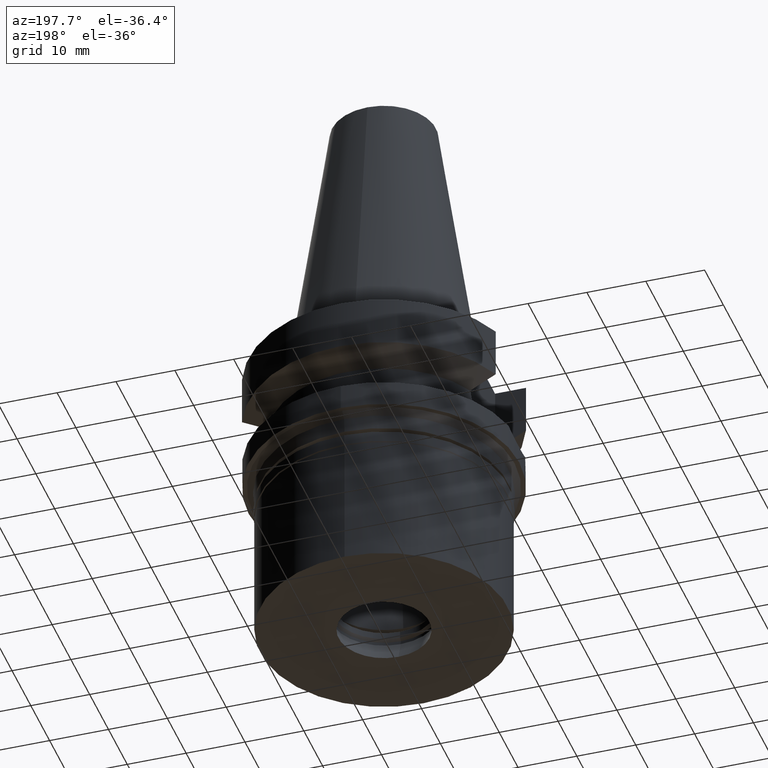
[diagram: clean part render]
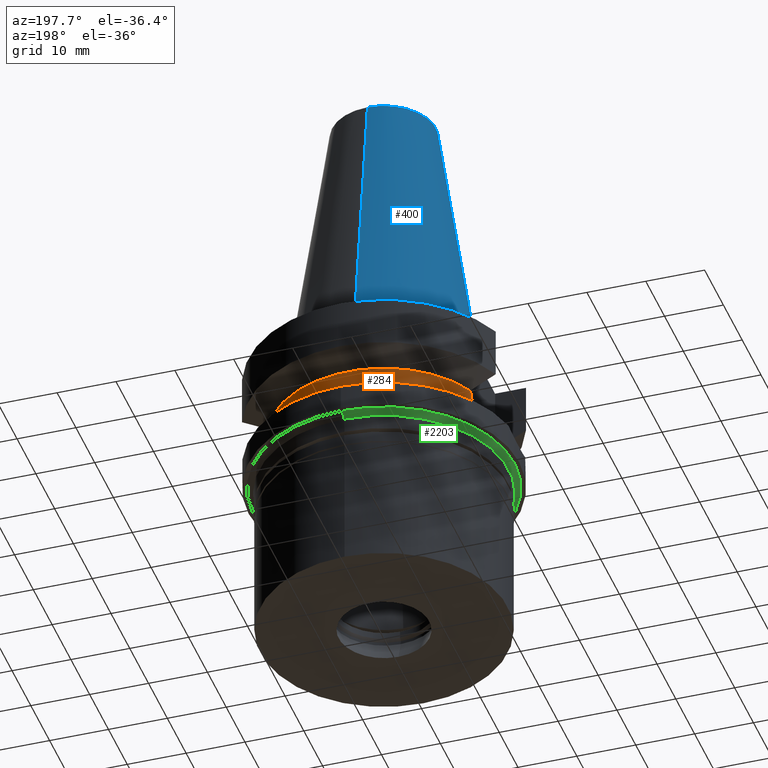
[diagram: same view with three faces highlighted in distinct colors, each labeled with its STEP entity id]
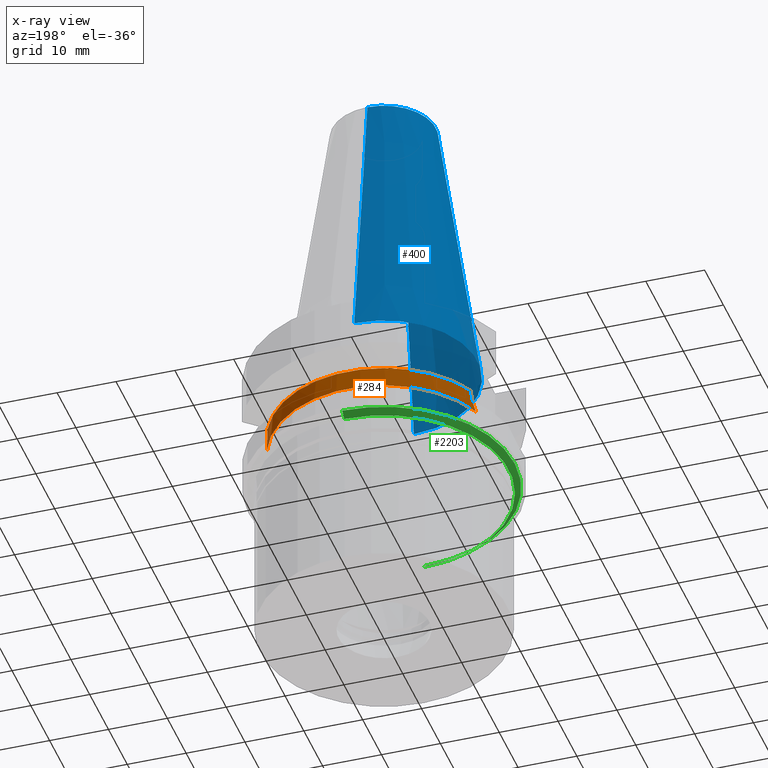
[diagram: x-ray of the same camera — body ghosted, the three highlighted faces saturated]
A machine part, auxiliary view with three faces highlighted in distinct colors.
The next image is the same camera in x-ray (body ghosted, the three faces saturated) — at least one of them is partly hidden behind the body in this view.
Their STEP definitions:

[orange] entity #284 — the highlighted cylindrical surface (partial cylindrical patch) has radius 19 mm, axis along (0, 0, -1).
#49 = VERTEX_POINT ( 'NONE', #1162 ) ;
#174 = CARTESIAN_POINT ( 'NONE',  ( -17.32017193867294935, 7.811515975133208833, -12.90082288075168115 ) ) ;
#233 = CARTESIAN_POINT ( 'NONE',  ( -17.38150961877511591, 7.673851445191279375, -13.38418433673671615 ) ) ;
#284 = ADVANCED_FACE ( 'NONE', ( #2838 ), #1189, .T. ) ;
#329 = CARTESIAN_POINT ( 'NONE',  ( 17.42264579049253825, 7.579835985887467764, -13.66084151441940264 ) ) ;
#363 = EDGE_CURVE ( 'NONE', #641, #2152, #2161, .T. ) ;
#394 = CARTESIAN_POINT ( 'NONE',  ( -17.75736593456000278, 6.758398853743999624, -15.32339055352999857 ) ) ;
#477 = CARTESIAN_POINT ( 'NONE',  ( -17.41733678394968265, 7.592028263050643488, -13.62650975490741878 ) ) ;
#478 = ORIENTED_EDGE ( 'NONE', *, *, #2720, .F. ) ;
#539 = AXIS2_PLACEMENT_3D ( 'NONE', #954, #2934, #1328 ) ;
#543 = CARTESIAN_POINT ( 'NONE',  ( 0.0000000000000000000, 1.022848384030000006E-14, -15.32339055352999857 ) ) ;
#564 = CARTESIAN_POINT ( 'NONE',  ( 17.53678553324629519, 7.312898235672088632, -14.31874682332711579 ) ) ;
#601 = ORIENTED_EDGE ( 'NONE', *, *, #671, .T. ) ;
#641 = VERTEX_POINT ( 'NONE', #1077 ) ;
#671 = EDGE_CURVE ( 'NONE', #49, #1875, #2399, .T. ) ;
#672 = CARTESIAN_POINT ( 'NONE',  ( 0.0000000000000000000, 1.093341284896999988E-14, -11.87660944646999894 ) ) ;
#702 = CARTESIAN_POINT ( 'NONE',  ( -17.61319088183911674, 7.137211827796019037, -14.73799367706151564 ) ) ;
#741 = EDGE_LOOP ( 'NONE', ( #1376, #601, #478, #1119 ) ) ;
#749 = CARTESIAN_POINT ( 'NONE',  ( 17.75736593456000278, 6.758398853743999624, -15.32339055352999857 ) ) ;
#851 = CARTESIAN_POINT ( 'NONE',  ( 17.68525611697085509, 6.947863909902705082, -15.03060160575792459 ) ) ;
#891 = CARTESIAN_POINT ( 'NONE',  ( -17.23531135312000018, 7.996501749183000385, -11.87660739350999961 ) ) ;
#954 = CARTESIAN_POINT ( 'NONE',  ( 0.0000000000000000000, 1.873342208656000186E-14, 52.97000000000000597 ) ) ;
#1050 = DIRECTION ( 'NONE',  ( 0.0000000000000000000, 0.0000000000000000000, 1.000000000000000000 ) ) ;
#1077 = CARTESIAN_POINT ( 'NONE',  ( 17.75736593456000278, 6.758398853743999624, -15.32339055352999857 ) ) ;
#1118 = CARTESIAN_POINT ( 'NONE',  ( 17.26627806865158732, 7.929758636638667646, -12.45251551474860108 ) ) ;
#1119 = ORIENTED_EDGE ( 'NONE', *, *, #363, .T. ) ;
#1127 = CARTESIAN_POINT ( 'NONE',  ( -17.36635961647695581, 7.708092773765578443, -13.27245751280105779 ) ) ;
#1162 = CARTESIAN_POINT ( 'NONE',  ( -17.23531135312000018, 7.996501749183000385, -11.87660739350999961 ) ) ;
#1189 = CYLINDRICAL_SURFACE ( 'NONE', #539, 19.00000000000000000 ) ;
#1253 = CARTESIAN_POINT ( 'NONE',  ( -17.41022320782780497, 7.608337958408016632, -13.57990024112469030 ) ) ;
#1263 = CARTESIAN_POINT ( 'NONE',  ( 17.43818754212565025, 7.544069795733022943, -13.75921087035953505 ) ) ;
#1328 = DIRECTION ( 'NONE',  ( 0.0000000000000000000, -1.000000000000000000, 0.0000000000000000000 ) ) ;
#1376 = ORIENTED_EDGE ( 'NONE', *, *, #2167, .F. ) ;
#1378 = CARTESIAN_POINT ( 'NONE',  ( -17.27394636233537994, 7.913402763695001063, -12.45748919294496204 ) ) ;
#1684 = CARTESIAN_POINT ( 'NONE',  ( -17.75736593456000278, 6.758398853743999624, -15.32339055352999857 ) ) ;
#1722 = CARTESIAN_POINT ( 'NONE',  ( -17.41895439079313945, 7.588315328350016209, -13.63701416030827218 ) ) ;
#1792 = CARTESIAN_POINT ( 'NONE',  ( 17.42156015895049492, 7.582330336621899924, -13.65386102520930578 ) ) ;
#1841 = CARTESIAN_POINT ( 'NONE',  ( 17.47447672647711769, 7.459902742166049094, -13.97618157012996676 ) ) ;
#1875 = VERTEX_POINT ( 'NONE', #2672 ) ;
#1933 = CARTESIAN_POINT ( 'NONE',  ( -17.50080678980921789, 7.400327745555952852, -14.16609910749333423 ) ) ;
#1963 = CARTESIAN_POINT ( 'NONE',  ( -17.40044238433109314, 7.630712768929782897, -13.51465132390280743 ) ) ;
#2056 = CARTESIAN_POINT ( 'NONE',  ( 17.45712581401933150, 7.500313914454087794, -13.87517845135657524 ) ) ;
#2073 = CARTESIAN_POINT ( 'NONE',  ( 17.23531622907000482, 7.996491146279001150, -11.87660607779999999 ) ) ;
#2152 = VERTEX_POINT ( 'NONE', #394 ) ;
#2161 = CIRCLE ( 'NONE', #2782, 19.00000000000000000 ) ;
#2167 = EDGE_CURVE ( 'NONE', #49, #2152, #3065, .T. ) ;
#2194 = B_SPLINE_CURVE_WITH_KNOTS ( 'NONE', 3,
 ( #749, #851, #2894, #564, #2484, #1841, #2056, #1263, #2215, #2701, #329, #1792, #2586, #1118, #2073 ),
 .UNSPECIFIED., .F., .F.,
 ( 4, 2, 2, 1, 1, 1, 2, 2, 4 ),
 ( 0.0000000000000000000, 0.2500000000000053291, 0.3750000000000078826, 0.4375000000000102141, 0.4687500000000106026, 0.4843750000000109912, 0.4921875000000109912, 0.5000000000000109912, 1.000000000000000000 ),
 .UNSPECIFIED. ) ;
#2215 = CARTESIAN_POINT ( 'NONE',  ( 17.42904452100556867, 7.565124676942255100, -13.70171207084109355 ) ) ;
#2312 = CARTESIAN_POINT ( 'NONE',  ( -17.25079567563301453, 7.963118628083215356, -12.16462305677937294 ) ) ;
#2326 = DIRECTION ( 'NONE',  ( 0.0000000000000000000, 0.0000000000000000000, -1.000000000000000000 ) ) ;
#2327 = CARTESIAN_POINT ( 'NONE',  ( -17.33749705516615691, 7.773004237844975073, -13.04926595490325347 ) ) ;
#2399 = CIRCLE ( 'NONE', #2641, 19.00000000000000000 ) ;
#2484 = CARTESIAN_POINT ( 'NONE',  ( 17.51066936202930791, 7.374980357713861068, -14.18014860265249766 ) ) ;
#2566 = DIRECTION ( 'NONE',  ( 0.0000000000000000000, 1.000000000000000000, 0.0000000000000000000 ) ) ;
#2586 = CARTESIAN_POINT ( 'NONE',  ( 17.32787896221825363, 7.797470577424066462, -13.04820123579451874 ) ) ;
#2641 = AXIS2_PLACEMENT_3D ( 'NONE', #672, #2326, #2566 ) ;
#2672 = CARTESIAN_POINT ( 'NONE',  ( 17.23531622907000482, 7.996491146279001150, -11.87660607779999999 ) ) ;
#2701 = CARTESIAN_POINT ( 'NONE',  ( 17.42519596513126956, 7.573974453344759716, -13.67717551128182762 ) ) ;
#2720 = EDGE_CURVE ( 'NONE', #641, #1875, #2194, .T. ) ;
#2782 = AXIS2_PLACEMENT_3D ( 'NONE', #543, #1050, #2954 ) ;
#2829 = CARTESIAN_POINT ( 'NONE',  ( -17.41448236948039607, 7.598575320519898035, -13.60786581931072448 ) ) ;
#2838 = FACE_OUTER_BOUND ( 'NONE', #741, .T. ) ;
#2894 = CARTESIAN_POINT ( 'NONE',  ( 17.62109728944379583, 7.108454003986333092, -14.74079473634495230 ) ) ;
#2934 = DIRECTION ( 'NONE',  ( 0.0000000000000000000, 0.0000000000000000000, -1.000000000000000000 ) ) ;
#2954 = DIRECTION ( 'NONE',  ( 0.0000000000000000000, 1.000000000000000000, 0.0000000000000000000 ) ) ;
#3065 = B_SPLINE_CURVE_WITH_KNOTS ( 'NONE', 3,
 ( #891, #2312, #1378, #174, #2327, #1127, #233, #1963, #1253, #2829, #477, #1722, #1933, #702, #1684 ),
 .UNSPECIFIED., .F., .F.,
 ( 4, 2, 2, 1, 1, 1, 2, 2, 4 ),
 ( 0.0000000000000000000, 0.2500000000000180966, 0.3750000000000278111, 0.4375000000000326961, 0.4687500000000350830, 0.4843750000000370814, 0.4921875000000374700, 0.5000000000000378586, 1.000000000000000000 ),
 .UNSPECIFIED. ) ;

[blue] entity #400 — the highlighted conical surface has half-angle 8.297 deg.
#211 = DIRECTION ( 'NONE',  ( 0.0000000000000000000, 0.0000000000000000000, -1.000000000000000000 ) ) ;
#298 = CONICAL_SURFACE ( 'NONE', #789, 12.34589586639000025, 0.1448099680379422438 ) ;
#361 = DIRECTION ( 'NONE',  ( 0.0000000000000000000, -1.000000000000000000, 0.0000000000000000000 ) ) ;
#400 = ADVANCED_FACE ( 'NONE', ( #2914 ), #298, .T. ) ;
#427 = DIRECTION ( 'NONE',  ( 0.0000000000000000000, 0.1443043893539925626, -0.9895333461855498891 ) ) ;
#446 = VERTEX_POINT ( 'NONE', #940 ) ;
#455 = LINE ( 'NONE', #1435, #2534 ) ;
#562 = EDGE_CURVE ( 'NONE', #446, #848, #2015, .T. ) ;
#631 = EDGE_LOOP ( 'NONE', ( #1339, #862, #2890, #1720 ) ) ;
#776 = DIRECTION ( 'NONE',  ( 0.0000000000000000000, 0.0000000000000000000, -1.000000000000000000 ) ) ;
#789 = AXIS2_PLACEMENT_3D ( 'NONE', #1788, #776, #361 ) ;
#823 = CARTESIAN_POINT ( 'NONE',  ( 0.0000000000000000000, -8.816791732783000768, 48.39999999999999858 ) ) ;
#848 = VERTEX_POINT ( 'NONE', #1265 ) ;
#862 = ORIENTED_EDGE ( 'NONE', *, *, #2810, .F. ) ;
#882 = AXIS2_PLACEMENT_3D ( 'NONE', #1216, #211, #2132 ) ;
#940 = CARTESIAN_POINT ( 'NONE',  ( 0.0000000000000000000, -15.87500000000000000, -2.025046796915999520E-13 ) ) ;
#1172 = CARTESIAN_POINT ( 'NONE',  ( 0.0000000000000000000, 8.816791732783000768, 48.39999999999999858 ) ) ;
#1216 = CARTESIAN_POINT ( 'NONE',  ( 0.0000000000000000000, 1.521011324540999938E-14, 48.39999999999999858 ) ) ;
#1265 = CARTESIAN_POINT ( 'NONE',  ( 0.0000000000000000000, 15.87500000000000000, -2.025046796915999520E-13 ) ) ;
#1321 = DIRECTION ( 'NONE',  ( 0.0000000000000000000, 0.0000000000000000000, -1.000000000000000000 ) ) ;
#1339 = ORIENTED_EDGE ( 'NONE', *, *, #562, .F. ) ;
#1366 = AXIS2_PLACEMENT_3D ( 'NONE', #1831, #1321, #1845 ) ;
#1389 = VERTEX_POINT ( 'NONE', #1172 ) ;
#1395 = EDGE_CURVE ( 'NONE', #1389, #848, #455, .T. ) ;
#1435 = CARTESIAN_POINT ( 'NONE',  ( 0.0000000000000000000, 8.816791732783000768, 48.39999999999999858 ) ) ;
#1720 = ORIENTED_EDGE ( 'NONE', *, *, #1395, .T. ) ;
#1737 = EDGE_CURVE ( 'NONE', #2907, #1389, #2232, .T. ) ;
#1788 = CARTESIAN_POINT ( 'NONE',  ( 0.0000000000000000000, 1.521011324540999938E-14, 24.19999999999999929 ) ) ;
#1831 = CARTESIAN_POINT ( 'NONE',  ( 0.0000000000000000000, 1.521011324540999938E-14, -3.694822225953000089E-13 ) ) ;
#1845 = DIRECTION ( 'NONE',  ( 0.0000000000000000000, -1.000000000000000000, 0.0000000000000000000 ) ) ;
#1905 = VECTOR ( 'NONE', #2212, 1000.000000000000114 ) ;
#2015 = CIRCLE ( 'NONE', #1366, 15.87500000000000000 ) ;
#2132 = DIRECTION ( 'NONE',  ( 0.0000000000000000000, -1.000000000000000000, 0.0000000000000000000 ) ) ;
#2212 = DIRECTION ( 'NONE',  ( 0.0000000000000000000, -0.1443043893539925626, -0.9895333461855498891 ) ) ;
#2227 = LINE ( 'NONE', #823, #1905 ) ;
#2232 = CIRCLE ( 'NONE', #882, 8.816791732783000768 ) ;
#2330 = CARTESIAN_POINT ( 'NONE',  ( 0.0000000000000000000, -8.816791732783000768, 48.39999999999999858 ) ) ;
#2534 = VECTOR ( 'NONE', #427, 1000.000000000000114 ) ;
#2810 = EDGE_CURVE ( 'NONE', #2907, #446, #2227, .T. ) ;
#2890 = ORIENTED_EDGE ( 'NONE', *, *, #1737, .T. ) ;
#2907 = VERTEX_POINT ( 'NONE', #2330 ) ;
#2914 = FACE_OUTER_BOUND ( 'NONE', #631, .T. ) ;

[green] entity #2203 — the highlighted conical surface has half-angle 45 deg.
#4 = VERTEX_POINT ( 'NONE', #2072 ) ;
#36 = CIRCLE ( 'NONE', #574, 21.20997279246000033 ) ;
#44 = CARTESIAN_POINT ( 'NONE',  ( 0.0000000000000000000, 22.20997279246000033, -22.00000000000000000 ) ) ;
#101 = CARTESIAN_POINT ( 'NONE',  ( 0.0000000000000000000, -21.20997279246000033, -23.00000000000000000 ) ) ;
#188 = VERTEX_POINT ( 'NONE', #2173 ) ;
#226 = CARTESIAN_POINT ( 'NONE',  ( 0.0000000000000000000, 0.0000000000000000000, -22.00000000000000000 ) ) ;
#434 = DIRECTION ( 'NONE',  ( 0.0000000000000000000, 0.0000000000000000000, 1.000000000000000000 ) ) ;
#574 = AXIS2_PLACEMENT_3D ( 'NONE', #1341, #1561, #858 ) ;
#600 = AXIS2_PLACEMENT_3D ( 'NONE', #226, #1116, #3016 ) ;
#659 = ORIENTED_EDGE ( 'NONE', *, *, #1166, .T. ) ;
#858 = DIRECTION ( 'NONE',  ( 0.0000000000000000000, -1.000000000000000000, 0.0000000000000000000 ) ) ;
#979 = AXIS2_PLACEMENT_3D ( 'NONE', #1039, #434, #1859 ) ;
#1020 = FACE_OUTER_BOUND ( 'NONE', #1266, .T. ) ;
#1039 = CARTESIAN_POINT ( 'NONE',  ( 0.0000000000000000000, 0.0000000000000000000, -22.50000000000000000 ) ) ;
#1116 = DIRECTION ( 'NONE',  ( 0.0000000000000000000, 0.0000000000000000000, -1.000000000000000000 ) ) ;
#1166 = EDGE_CURVE ( 'NONE', #2016, #4, #1921, .T. ) ;
#1210 = ORIENTED_EDGE ( 'NONE', *, *, #1300, .F. ) ;
#1266 = EDGE_LOOP ( 'NONE', ( #1210, #1587, #659, #2263 ) ) ;
#1300 = EDGE_CURVE ( 'NONE', #1311, #188, #36, .T. ) ;
#1311 = VERTEX_POINT ( 'NONE', #101 ) ;
#1341 = CARTESIAN_POINT ( 'NONE',  ( 0.0000000000000000000, 0.0000000000000000000, -23.00000000000000000 ) ) ;
#1416 = LINE ( 'NONE', #1480, #2146 ) ;
#1480 = CARTESIAN_POINT ( 'NONE',  ( 0.0000000000000000000, -22.20997279246000033, -22.00000000000000000 ) ) ;
#1561 = DIRECTION ( 'NONE',  ( 0.0000000000000000000, 0.0000000000000000000, -1.000000000000000000 ) ) ;
#1587 = ORIENTED_EDGE ( 'NONE', *, *, #1706, .F. ) ;
#1706 = EDGE_CURVE ( 'NONE', #2016, #1311, #1416, .T. ) ;
#1859 = DIRECTION ( 'NONE',  ( 0.0000000000000000000, 1.000000000000000000, 0.0000000000000000000 ) ) ;
#1921 = CIRCLE ( 'NONE', #600, 22.20997279246000033 ) ;
#2016 = VERTEX_POINT ( 'NONE', #2201 ) ;
#2021 = EDGE_CURVE ( 'NONE', #4, #188, #2866, .T. ) ;
#2072 = CARTESIAN_POINT ( 'NONE',  ( 0.0000000000000000000, 22.20997279246000033, -22.00000000000000000 ) ) ;
#2146 = VECTOR ( 'NONE', #2800, 1000.000000000000000 ) ;
#2173 = CARTESIAN_POINT ( 'NONE',  ( 0.0000000000000000000, 21.20997279246000033, -23.00000000000000000 ) ) ;
#2201 = CARTESIAN_POINT ( 'NONE',  ( 0.0000000000000000000, -22.20997279246000033, -22.00000000000000000 ) ) ;
#2203 = ADVANCED_FACE ( 'NONE', ( #1020 ), #2344, .T. ) ;
#2263 = ORIENTED_EDGE ( 'NONE', *, *, #2021, .T. ) ;
#2344 = CONICAL_SURFACE ( 'NONE', #979, 21.70997279246000033, 0.7853981633972997312 ) ;
#2582 = VECTOR ( 'NONE', #2916, 1000.000000000000000 ) ;
#2800 = DIRECTION ( 'NONE',  ( 0.0000000000000000000, 0.7071067811862969954, -0.7071067811867980391 ) ) ;
#2866 = LINE ( 'NONE', #44, #2582 ) ;
#2916 = DIRECTION ( 'NONE',  ( 0.0000000000000000000, -0.7071067811862969954, -0.7071067811867980391 ) ) ;
#3016 = DIRECTION ( 'NONE',  ( 0.0000000000000000000, -1.000000000000000000, 0.0000000000000000000 ) ) ;